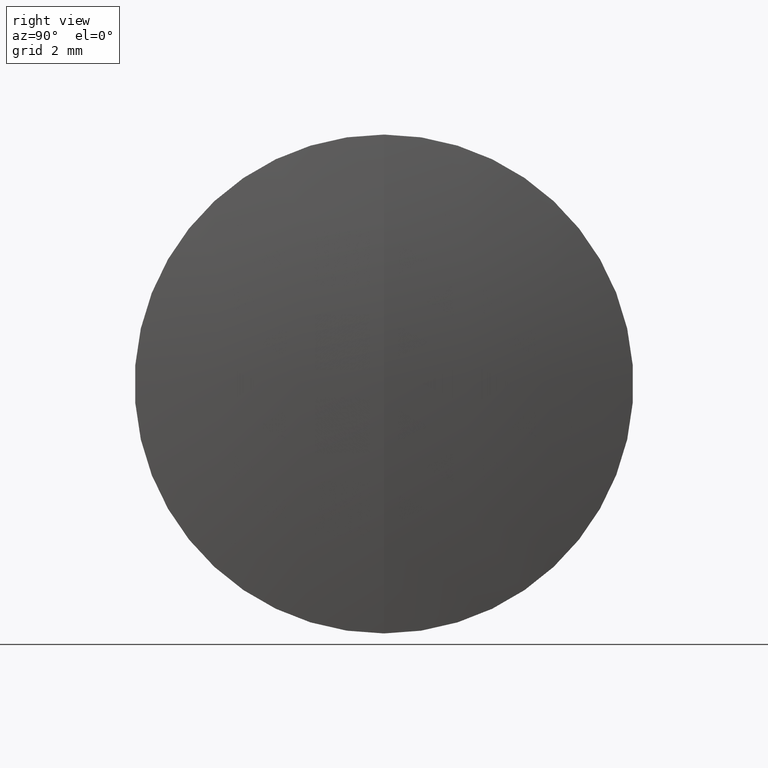
[diagram: clean part render]
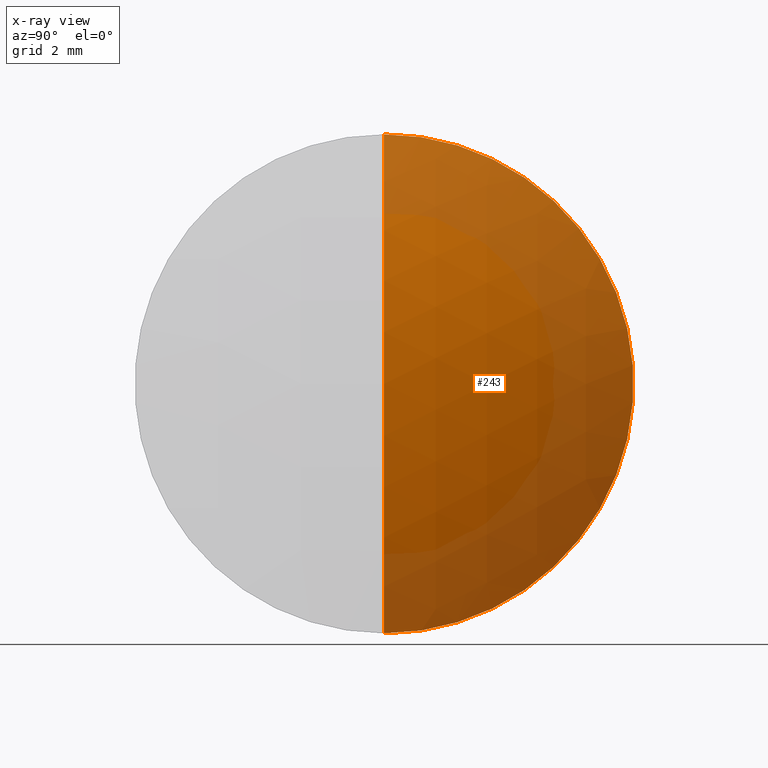
[diagram: x-ray — body ghosted, one internal face saturated and labeled with its STEP entity id]
A machine part, right view, then the same camera in x-ray: the body is ghosted and one INTERNAL B-rep face — a face not visible from any outside direction — is saturated and labeled: STEP entity #243.
In plain terms, the highlighted spherical surface has radius 13.5 mm.
Its self-contained STEP definition (entity closure, byte-faithful):
#7 = CIRCLE ( 'NONE', #51, 13.50000000000000000 ) ;
#10 = ORIENTED_EDGE ( 'NONE', *, *, #294, .T. ) ;
#23 = VERTEX_POINT ( 'NONE', #208 ) ;
#45 = CARTESIAN_POINT ( 'NONE',  ( 2.791162019973179000, 7.776507174585692200E-016, -6.349999999999999600 ) ) ;
#51 = AXIS2_PLACEMENT_3D ( 'NONE', #295, #165, #134 ) ;
#109 = AXIS2_PLACEMENT_3D ( 'NONE', #311, #304, #228 ) ;
#110 = SPHERICAL_SURFACE ( 'NONE', #240, 13.50000000000000000 ) ;
#134 = DIRECTION ( 'NONE',  ( 0.0000000000000000000, -1.224646799147353200E-016, 1.000000000000000000 ) ) ;
#151 = CARTESIAN_POINT ( 'NONE',  ( 2.791162019973179000, 0.0000000000000000000, 0.0000000000000000000 ) ) ;
#157 = DIRECTION ( 'NONE',  ( -1.000000000000000000, -0.0000000000000000000, -0.0000000000000000000 ) ) ;
#160 = FACE_OUTER_BOUND ( 'NONE', #310, .T. ) ;
#165 = DIRECTION ( 'NONE',  ( -0.0000000000000000000, 1.000000000000000000, 1.224646799147353200E-016 ) ) ;
#191 = CARTESIAN_POINT ( 'NONE',  ( 2.791162019973179000, 0.0000000000000000000, 6.349999999999999600 ) ) ;
#200 = CIRCLE ( 'NONE', #323, 6.349999999999999600 ) ;
#202 = DIRECTION ( 'NONE',  ( 0.0000000000000000000, 1.000000000000000000, 0.0000000000000000000 ) ) ;
#208 = CARTESIAN_POINT ( 'NONE',  ( 4.377829152970762500, 0.0000000000000000000, 8.266365894244634300E-016 ) ) ;
#227 = EDGE_CURVE ( 'NONE', #23, #319, #238, .T. ) ;
#228 = DIRECTION ( 'NONE',  ( 0.0000000000000000000, 0.0000000000000000000, -1.000000000000000000 ) ) ;
#238 = CIRCLE ( 'NONE', #109, 13.50000000000000000 ) ;
#239 = DIRECTION ( 'NONE',  ( 0.0000000000000000000, 0.0000000000000000000, 1.000000000000000000 ) ) ;
#240 = AXIS2_PLACEMENT_3D ( 'NONE', #251, #202, #239 ) ;
#243 = ADVANCED_FACE ( 'NONE', ( #160 ), #110, .T. ) ;
#251 = CARTESIAN_POINT ( 'NONE',  ( -9.122170847029236600, 0.0000000000000000000, 0.0000000000000000000 ) ) ;
#270 = EDGE_CURVE ( 'NONE', #319, #326, #200, .T. ) ;
#290 = ORIENTED_EDGE ( 'NONE', *, *, #227, .F. ) ;
#294 = EDGE_CURVE ( 'NONE', #23, #326, #7, .T. ) ;
#295 = CARTESIAN_POINT ( 'NONE',  ( -9.122170847029236600, 0.0000000000000000000, 0.0000000000000000000 ) ) ;
#304 = DIRECTION ( 'NONE',  ( 0.0000000000000000000, -1.000000000000000000, 0.0000000000000000000 ) ) ;
#310 = EDGE_LOOP ( 'NONE', ( #290, #10, #336 ) ) ;
#311 = CARTESIAN_POINT ( 'NONE',  ( -9.122170847029236600, 0.0000000000000000000, 0.0000000000000000000 ) ) ;
#318 = DIRECTION ( 'NONE',  ( 0.0000000000000000000, 0.0000000000000000000, 1.000000000000000000 ) ) ;
#319 = VERTEX_POINT ( 'NONE', #191 ) ;
#323 = AXIS2_PLACEMENT_3D ( 'NONE', #151, #157, #318 ) ;
#326 = VERTEX_POINT ( 'NONE', #45 ) ;
#336 = ORIENTED_EDGE ( 'NONE', *, *, #270, .F. ) ;